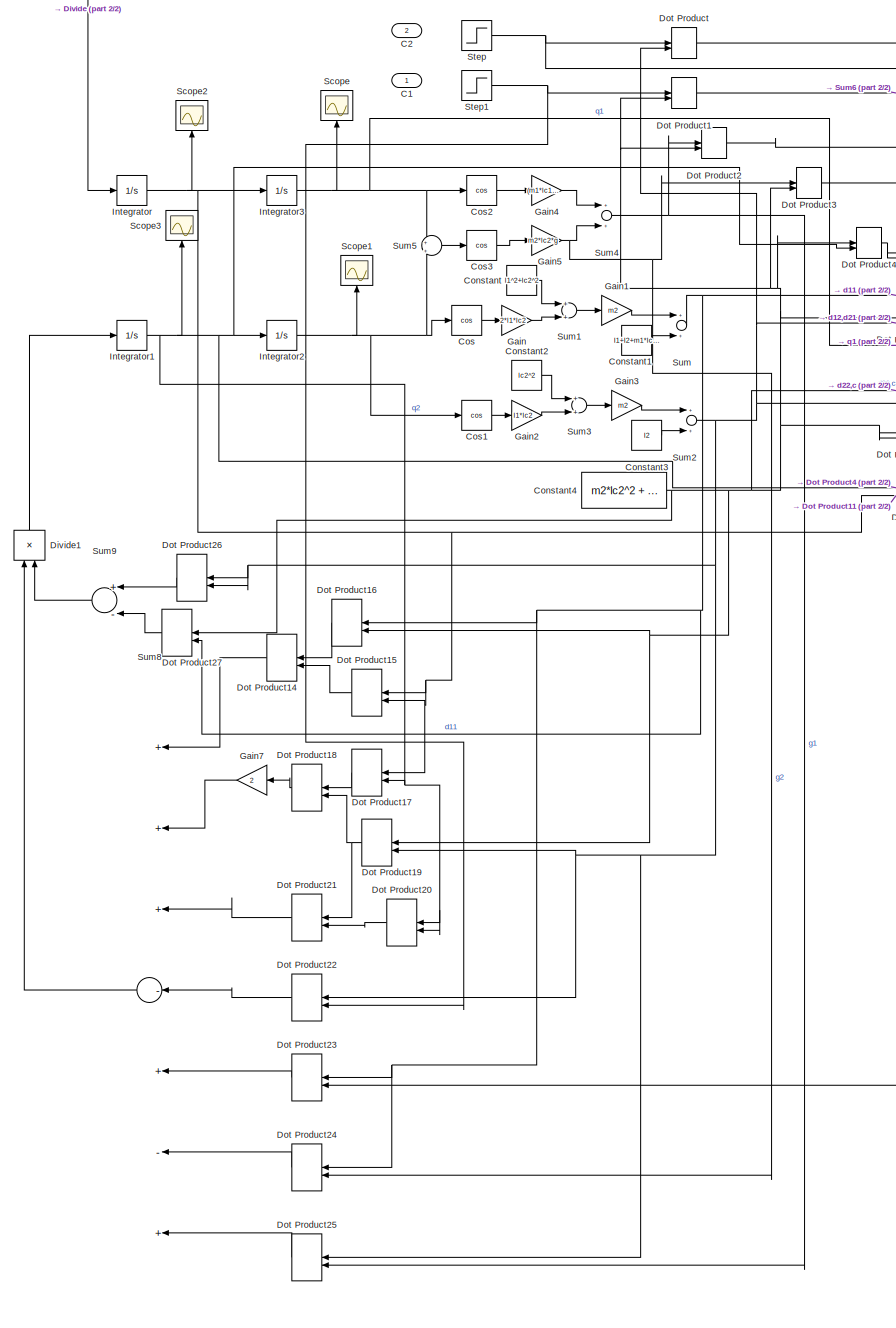
[diagram: root canvas - part 1/2, left side, full height]
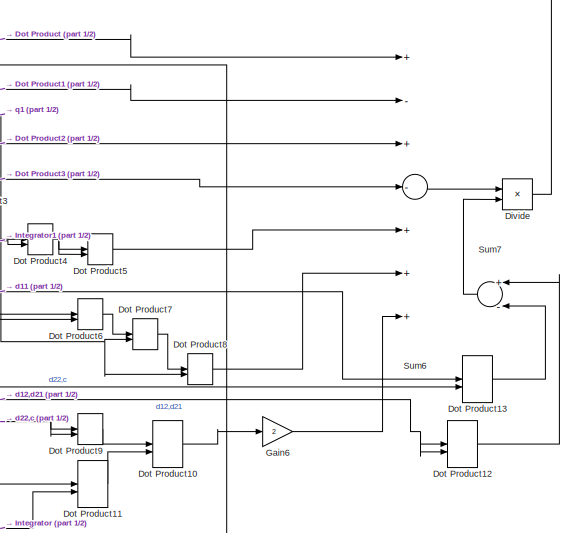
[diagram: root canvas - part 2/2, top right region]
MODEL slx_cd52c2ea88cb
KIND model
CONFIG AbsTol = auto
CONFIG EnableMultiTasking = off
CONFIG FixedStep = auto
CONFIG MaxStep = auto
CONFIG MinStep = auto
CONFIG RelTol = 1e-3
CONFIG SampleTimeConstraint = Unconstrained
CONFIG Solver = ode23s
CONFIG SolverName = ode23s
CONFIG StartTime = 0.0
CONFIG StopTime = 5
BLOCK [Inport] C1
  IconDisplay = Port number
BLOCK [Inport] C2
  IconDisplay = Port number
  Port = 2
BLOCK [Constant] Constant
  Value = l1^2+lc2^2
BLOCK [Constant] Constant1
  Value = I1+I2+m1*lc1*lc1
BLOCK [Constant] Constant2
  Value = lc2^2
BLOCK [Constant] Constant3
  Value = I2
BLOCK [Constant] Constant4
  Value = m2*lc2^2 + I2
BLOCK [Trigonometry] Cos
  Operator = cos
  Ports = [1, 1]
BLOCK [Trigonometry] Cos1
  Operator = cos
  Ports = [1, 1]
BLOCK [Trigonometry] Cos2
  Operator = cos
  Ports = [1, 1]
BLOCK [Trigonometry] Cos3
  Operator = cos
  Ports = [1, 1]
BLOCK [Product] Divide
  InputSameDT = off
  Inputs = */
  OutDataTypeStr = Inherit: Inherit via internal rule
  Ports = [2, 1]
  RndMeth = Floor
  SaturateOnIntegerOverflow = off
BLOCK [Product] Divide1
  InputSameDT = off
  Inputs = */
  OutDataTypeStr = Inherit: Inherit via internal rule
  Ports = [2, 1]
  RndMeth = Floor
  SaturateOnIntegerOverflow = off
BLOCK [DotProduct] Dot Product
  OutDataTypeStr = Inherit: Inherit via internal rule
BLOCK [DotProduct] Dot Product1
  OutDataTypeStr = Inherit: Inherit via internal rule
BLOCK [DotProduct] Dot Product10
  OutDataTypeStr = Inherit: Inherit via internal rule
BLOCK [DotProduct] Dot Product11
  OutDataTypeStr = Inherit: Inherit via internal rule
BLOCK [DotProduct] Dot Product12
  OutDataTypeStr = Inherit: Inherit via internal rule
BLOCK [DotProduct] Dot Product13
  OutDataTypeStr = Inherit: Inherit via internal rule
BLOCK [DotProduct] Dot Product14
  OutDataTypeStr = Inherit: Inherit via internal rule
BLOCK [DotProduct] Dot Product15
  OutDataTypeStr = Inherit: Inherit via internal rule
BLOCK [DotProduct] Dot Product16
  OutDataTypeStr = Inherit: Inherit via internal rule
BLOCK [DotProduct] Dot Product17
  OutDataTypeStr = Inherit: Inherit via internal rule
BLOCK [DotProduct] Dot Product18
  OutDataTypeStr = Inherit: Inherit via internal rule
BLOCK [DotProduct] Dot Product19
  OutDataTypeStr = Inherit: Inherit via internal rule
BLOCK [DotProduct] Dot Product2
  OutDataTypeStr = Inherit: Inherit via internal rule
BLOCK [DotProduct] Dot Product20
  OutDataTypeStr = Inherit: Inherit via internal rule
BLOCK [DotProduct] Dot Product21
  OutDataTypeStr = Inherit: Inherit via internal rule
BLOCK [DotProduct] Dot Product22
  OutDataTypeStr = Inherit: Inherit via internal rule
BLOCK [DotProduct] Dot Product23
  OutDataTypeStr = Inherit: Inherit via internal rule
BLOCK [DotProduct] Dot Product24
  OutDataTypeStr = Inherit: Inherit via internal rule
BLOCK [DotProduct] Dot Product25
  OutDataTypeStr = Inherit: Inherit via internal rule
BLOCK [DotProduct] Dot Product26
  OutDataTypeStr = Inherit: Inherit via internal rule
BLOCK [DotProduct] Dot Product27
  OutDataTypeStr = Inherit: Inherit via internal rule
BLOCK [DotProduct] Dot Product3
  OutDataTypeStr = Inherit: Inherit via internal rule
BLOCK [DotProduct] Dot Product4
  OutDataTypeStr = Inherit: Inherit via internal rule
BLOCK [DotProduct] Dot Product5
  OutDataTypeStr = Inherit: Inherit via internal rule
BLOCK [DotProduct] Dot Product6
  OutDataTypeStr = Inherit: Inherit via internal rule
BLOCK [DotProduct] Dot Product7
  OutDataTypeStr = Inherit: Inherit via internal rule
BLOCK [DotProduct] Dot Product8
  OutDataTypeStr = Inherit: Inherit via internal rule
BLOCK [DotProduct] Dot Product9
  OutDataTypeStr = Inherit: Inherit via internal rule
BLOCK [Gain] Gain
  Gain = 2*l1*lc2
  OutDataTypeStr = Inherit: Inherit via internal rule
  ParamDataTypeStr = Inherit: Inherit via internal rule
  SaturateOnIntegerOverflow = off
BLOCK [Gain] Gain1
  Gain = m2
  OutDataTypeStr = Inherit: Inherit via internal rule
  ParamDataTypeStr = Inherit: Inherit via internal rule
  SaturateOnIntegerOverflow = off
BLOCK [Gain] Gain2
  Gain = l1*lc2
  OutDataTypeStr = Inherit: Inherit via internal rule
  ParamDataTypeStr = Inherit: Inherit via internal rule
  SaturateOnIntegerOverflow = off
BLOCK [Gain] Gain3
  Gain = m2
  OutDataTypeStr = Inherit: Inherit via internal rule
  ParamDataTypeStr = Inherit: Inherit via internal rule
  SaturateOnIntegerOverflow = off
BLOCK [Gain] Gain4
  Gain = (m1*lc1+m2*l1)*g
  OutDataTypeStr = Inherit: Inherit via internal rule
  ParamDataTypeStr = Inherit: Inherit via internal rule
  SaturateOnIntegerOverflow = off
BLOCK [Gain] Gain5
  Gain = m2*lc2*g
  OutDataTypeStr = Inherit: Inherit via internal rule
  ParamDataTypeStr = Inherit: Inherit via internal rule
  SaturateOnIntegerOverflow = off
BLOCK [Gain] Gain6
  Gain = 2
  OutDataTypeStr = Inherit: Inherit via internal rule
  ParamDataTypeStr = Inherit: Inherit via internal rule
  SaturateOnIntegerOverflow = off
BLOCK [Gain] Gain7
  Gain = 2
  OutDataTypeStr = Inherit: Inherit via internal rule
  ParamDataTypeStr = Inherit: Inherit via internal rule
  SaturateOnIntegerOverflow = off
BLOCK [Integrator] Integrator
  Ports = [1, 1]
BLOCK [Integrator] Integrator1
  Ports = [1, 1]
BLOCK [Integrator] Integrator2
  InitialCondition = pi/6
  Ports = [1, 1]
BLOCK [Integrator] Integrator3
  InitialCondition = pi/6
  Ports = [1, 1]
BLOCK [Scope] Scope
  Floating = off
  NumInputPorts = 1
  Ports = [1]
  ScopeSpecificationString = Simulink.scopes.TimeScopeBlockCfg('CurrentConfiguration', extmgr.ConfigurationSet(extmgr.Configuration('Core','General UI',true),extmgr.Configuration('Core','Source UI',true),extmgr.Configuration('Sources','WiredSimulink',true),extmgr.Configuration('Visuals','Time Domain',true,'SerializedDisplays',{struct('MinYLimReal','-16615059503453210570319074426880.00000','MaxYLimReal','1846117969532599032510...<+1566ch>
BLOCK [Scope] Scope1
  Floating = off
  NumInputPorts = 1
  Ports = [1]
  ScopeSpecificationString = Simulink.scopes.TimeScopeBlockCfg('CurrentConfiguration', extmgr.ConfigurationSet(extmgr.Configuration('Core','General UI',true),extmgr.Configuration('Core','Source UI',true),extmgr.Configuration('Sources','WiredSimulink',true,'DataLoggingVariableName','ScopeData1'),extmgr.Configuration('Visuals','Time Domain',true,'SerializedDisplays',{struct('MinYLimReal','-805960.53573','MaxYLimReal','7034121.5...<+1403ch>
BLOCK [Scope] Scope2
  Floating = off
  NumInputPorts = 1
  Ports = [1]
  ScopeSpecificationString = Simulink.scopes.TimeScopeBlockCfg('CurrentConfiguration', extmgr.ConfigurationSet(extmgr.Configuration('Core','General UI',true),extmgr.Configuration('Core','Source UI',true),extmgr.Configuration('Sources','WiredSimulink',true,'DataLoggingVariableName','ScopeData2'),extmgr.Configuration('Visuals','Time Domain',true,'SerializedDisplays',{struct('MinYLimReal','-98482349233653253018264267324366087719...<+1751ch>
BLOCK [Scope] Scope3
  Floating = off
  NumInputPorts = 1
  Ports = [1]
  ScopeSpecificationString = Simulink.scopes.TimeScopeBlockCfg('CurrentConfiguration', extmgr.ConfigurationSet(extmgr.Configuration('Core','General UI',true),extmgr.Configuration('Core','Source UI',true),extmgr.Configuration('Sources','WiredSimulink',true,'DataLoggingVariableName','ScopeData3'),extmgr.Configuration('Visuals','Time Domain',true,'SerializedDisplays',{struct('MinYLimReal','-2307511520559440592896.00000','MaxYLim...<+1540ch>
BLOCK [Step] Step
  SampleTime = 0
  Time = 0
BLOCK [Step] Step1
  SampleTime = 0
  Time = 0.2
BLOCK [Sum] Sum
  InputSameDT = off
  OutDataTypeStr = Inherit: Inherit via internal rule
  Ports = [2, 1]
  SaturateOnIntegerOverflow = off
BLOCK [Sum] Sum1
  InputSameDT = off
  OutDataTypeStr = Inherit: Inherit via internal rule
  Ports = [2, 1]
  SaturateOnIntegerOverflow = off
BLOCK [Sum] Sum2
  InputSameDT = off
  OutDataTypeStr = Inherit: Inherit via internal rule
  Ports = [2, 1]
  SaturateOnIntegerOverflow = off
BLOCK [Sum] Sum3
  InputSameDT = off
  OutDataTypeStr = Inherit: Inherit via internal rule
  Ports = [2, 1]
  SaturateOnIntegerOverflow = off
BLOCK [Sum] Sum4
  InputSameDT = off
  OutDataTypeStr = Inherit: Inherit via internal rule
  Ports = [2, 1]
  SaturateOnIntegerOverflow = off
BLOCK [Sum] Sum5
  IconShape = round
  InputSameDT = off
  Inputs = +|+
  OutDataTypeStr = Inherit: Inherit via internal rule
  Ports = [2, 1]
  SaturateOnIntegerOverflow = off
BLOCK [Sum] Sum6
  InputSameDT = off
  Inputs = +-+-+++
  OutDataTypeStr = Inherit: Inherit via internal rule
  Ports = [7, 1]
  SaturateOnIntegerOverflow = off
BLOCK [Sum] Sum7
  InputSameDT = off
  Inputs = +-
  OutDataTypeStr = Inherit: Inherit via internal rule
  Ports = [2, 1]
  SaturateOnIntegerOverflow = off
BLOCK [Sum] Sum8
  InputSameDT = off
  Inputs = +++-+-+
  OutDataTypeStr = Inherit: Inherit via internal rule
  Ports = [7, 1]
  SaturateOnIntegerOverflow = off
BLOCK [Sum] Sum9
  InputSameDT = off
  Inputs = +-
  OutDataTypeStr = Inherit: Inherit via internal rule
  Ports = [2, 1]
  SaturateOnIntegerOverflow = off
LINE Constant1:1 -> Sum:2
LINE Constant2:1 -> Sum3:1
LINE Constant3:1 -> Sum2:2
NET Constant4:1 -> Dot Product13:2, Dot Product16:2, Dot Product19:1, Dot Product1:2, Dot Product27:1, Dot Product2:2, Dot Product3:2, Dot Product4:1, Dot Product6:1, Dot Product9:1, Dot Product9:2
LINE Constant:1 -> Sum1:1
LINE Cos1:1 -> Gain2:1
LINE Cos2:1 -> Gain4:1
LINE Cos3:1 -> Gain5:1
LINE Cos:1 -> Gain:1
LINE Divide1:1 -> Integrator1:1
LINE Divide:1 -> Integrator:1
LINE Dot Product10:1 -> Gain6:1
LINE Dot Product11:1 -> Dot Product10:2
LINE Dot Product12:1 -> Sum7:1
LINE Dot Product13:1 -> Sum7:2
LINE Dot Product14:1 -> Sum8:1
LINE Dot Product15:1 -> Dot Product14:2
LINE Dot Product16:1 -> Dot Product14:1
LINE Dot Product17:1 -> Dot Product18:1
LINE Dot Product18:1 -> Gain7:1
NET Dot Product19:1 -> Dot Product18:2, Dot Product21:1
LINE Dot Product1:1 -> Sum6:2
LINE Dot Product20:1 -> Dot Product21:2
LINE Dot Product21:1 -> Sum8:3
LINE Dot Product22:1 -> Sum8:4
LINE Dot Product23:1 -> Sum8:5
LINE Dot Product24:1 -> Sum8:6
LINE Dot Product25:1 -> Sum8:7
LINE Dot Product26:1 -> Sum9:1
LINE Dot Product27:1 -> Sum9:2
LINE Dot Product2:1 -> Sum6:3
LINE Dot Product3:1 -> Sum6:4
NET Dot Product4:1 -> Dot Product5:1, Dot Product5:2
LINE Dot Product5:1 -> Sum6:5
LINE Dot Product6:1 -> Dot Product7:1
LINE Dot Product7:1 -> Dot Product8:1
LINE Dot Product8:1 -> Sum6:6
LINE Dot Product9:1 -> Dot Product10:1
LINE Dot Product:1 -> Sum6:1
LINE Gain1:1 -> Sum:1
LINE Gain2:1 -> Sum3:2
LINE Gain3:1 -> Sum2:1
LINE Gain4:1 -> Sum4:1
NET Gain5:1 -> Dot Product24:2, Dot Product3:1, Sum4:2
LINE Gain6:1 -> Sum6:7
LINE Gain7:1 -> Sum8:2
LINE Gain:1 -> Sum1:2
NET Integrator1:1 -> Dot Product11:1, Dot Product17:2, Dot Product20:1, Dot Product20:2, Dot Product4:2, Integrator2:1, Scope3:1
NET Integrator2:1 -> Cos1:1, Cos:1, Scope1:1, Sum5:2
NET Integrator3:1 -> Cos2:1, Dot Product7:2, Dot Product8:2, Scope:1, Sum5:1
NET Integrator:1 -> Dot Product11:2, Dot Product15:1, Dot Product15:2, Dot Product17:1, Integrator3:1, Scope2:1
NET Step1:1 -> Dot Product1:1, Dot Product22:2
NET Step:1 -> Dot Product23:2, Dot Product:1
LINE Sum1:1 -> Gain1:1
NET Sum2:1 -> Dot Product12:1, Dot Product12:2, Dot Product19:2, Dot Product22:1, Dot Product25:1, Dot Product26:1, Dot Product26:2, Dot Product6:2, Dot Product:2
LINE Sum3:1 -> Gain3:1
NET Sum4:1 -> Dot Product25:2, Dot Product2:1
LINE Sum5:1 -> Cos3:1
LINE Sum6:1 -> Divide:1
LINE Sum7:1 -> Divide:2
LINE Sum8:1 -> Divide1:1
LINE Sum9:1 -> Divide1:2
NET Sum:1 -> Dot Product13:1, Dot Product16:1, Dot Product23:1, Dot Product24:1, Dot Product27:2
note: NET lines group one-source signal fan-out (src -> all destinations, sorted); 1:1 wires keep LINE
